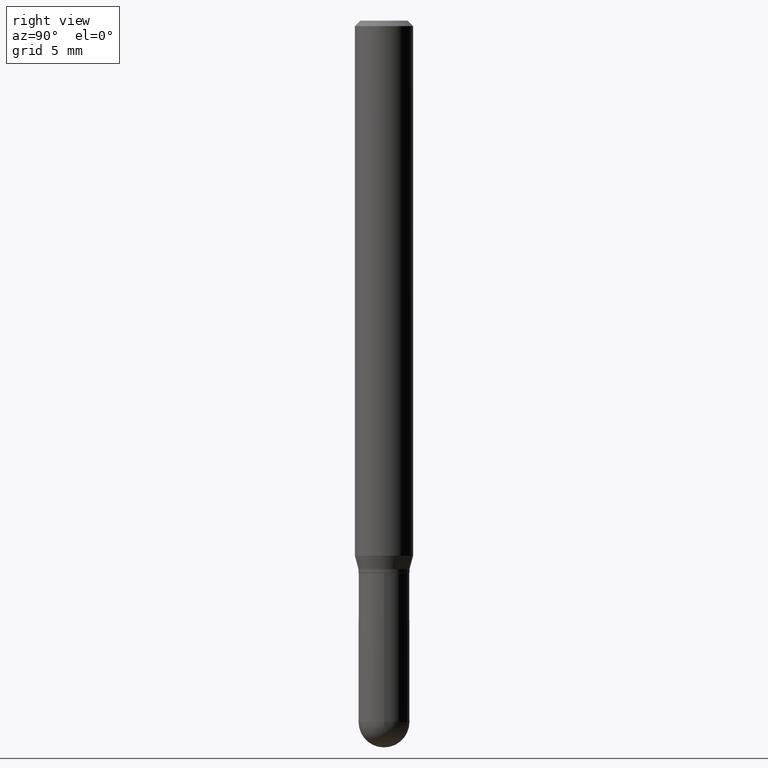
[diagram: clean part render]
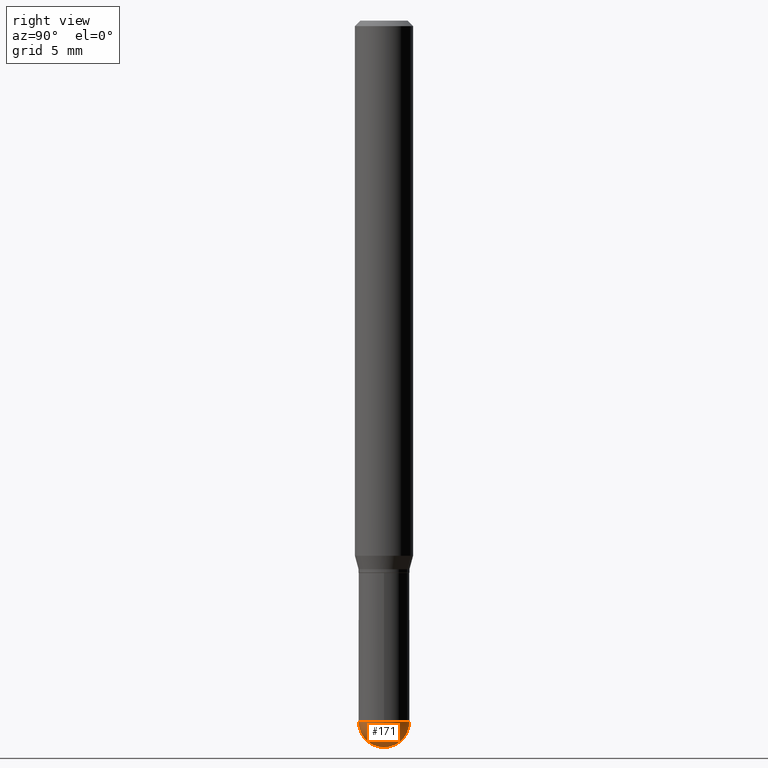
[diagram: same view with one face highlighted and labeled with its STEP entity id]
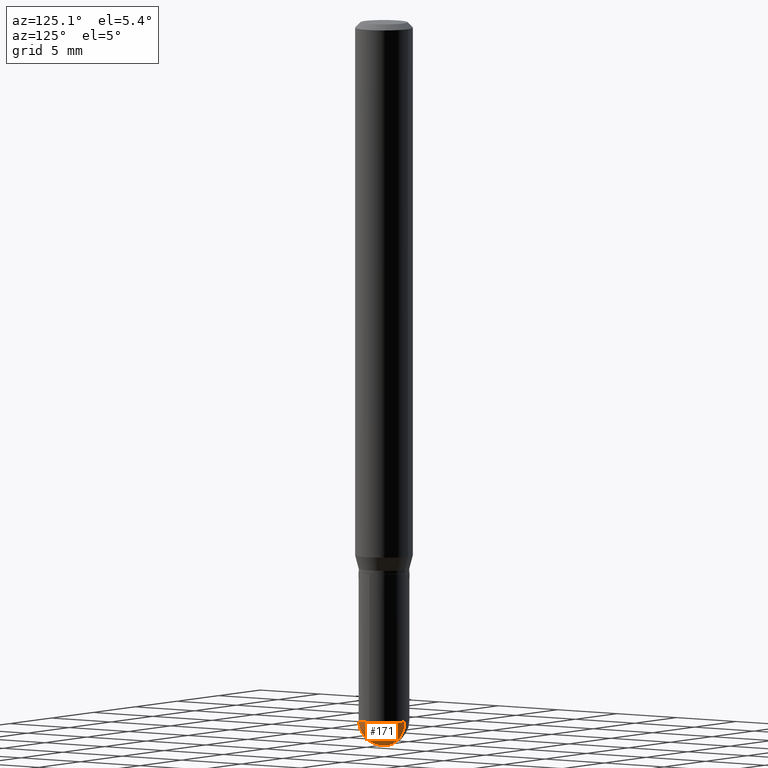
[diagram: same view with one face highlighted and labeled with its STEP entity id]
A machine part, right view. The second image highlights one B-rep face of the part: STEP entity #171.
A second angle (auxiliary view) of the same face is appended — the face is thin or edge-on in the first view.
In plain terms, the highlighted spherical surface has radius 1.7501 mm.
Its self-contained STEP definition (entity closure, byte-faithful):
#8 = DIRECTION ( 'NONE',  ( 1.000000000000000000, -6.982962677686273021E-15, 0.000000000000000000 ) ) ;
#19 = AXIS2_PLACEMENT_3D ( 'NONE', #124, #484, #404 ) ;
#29 = CARTESIAN_POINT ( 'NONE',  ( 4.679918503997674770E-29, -6.583003452920844326E-15, -1.899600000000000177 ) ) ;
#36 = DIRECTION ( 'NONE',  ( -2.445468806185136597E-29, 3.491481338843145583E-15, 1.000000000000000000 ) ) ;
#38 = ORIENTED_EDGE ( 'NONE', *, *, #239, .F. ) ;
#43 = CIRCLE ( 'NONE', #19, 0.06890000000000007230 ) ;
#51 = AXIS2_PLACEMENT_3D ( 'NONE', #316, #36, #8 ) ;
#90 = VERTEX_POINT ( 'NONE', #295 ) ;
#108 = DIRECTION ( 'NONE',  ( 1.000000000000000000, -6.982962677686265922E-15, 4.883557194083112340E-29 ) ) ;
#124 = CARTESIAN_POINT ( 'NONE',  ( 4.645412544229285965E-29, -6.632417951266439838E-15, -1.899600000000000177 ) ) ;
#171 = ADVANCED_FACE ( 'NONE', ( #463 ), #421, .T. ) ;
#200 = AXIS2_PLACEMENT_3D ( 'NONE', #268, #310, #273 ) ;
#201 = EDGE_LOOP ( 'NONE', ( #358, #326, #38, #208 ) ) ;
#208 = ORIENTED_EDGE ( 'NONE', *, *, #212, .F. ) ;
#209 = AXIS2_PLACEMENT_3D ( 'NONE', #346, #436, #269 ) ;
#212 = EDGE_CURVE ( 'NONE', #496, #502, #282, .T. ) ;
#239 = EDGE_CURVE ( 'NONE', #502, #90, #43, .T. ) ;
#259 = CARTESIAN_POINT ( 'NONE',  ( 4.851357352610053575E-29, -6.819347608944073688E-15, -1.968500000000000139 ) ) ;
#266 = DIRECTION ( 'NONE',  ( 6.982962677686265922E-15, 1.000000000000000000, 0.000000000000000000 ) ) ;
#268 = CARTESIAN_POINT ( 'NONE',  ( 4.679918503997674770E-29, -6.583003452920844326E-15, -1.899600000000000177 ) ) ;
#269 = DIRECTION ( 'NONE',  ( 6.982962677686265922E-15, 1.000000000000000000, -3.964946289788482474E-15 ) ) ;
#273 = DIRECTION ( 'NONE',  ( -7.105427357601001859E-15, -1.000000000000000000, 0.000000000000000000 ) ) ;
#274 = CIRCLE ( 'NONE', #426, 0.06889999999999996128 ) ;
#282 = CIRCLE ( 'NONE', #51, 0.06890000000000007230 ) ;
#295 = CARTESIAN_POINT ( 'NONE',  ( 4.811261284926304785E-16, 0.06889999999999341096, -1.899600000000000399 ) ) ;
#310 = DIRECTION ( 'NONE',  ( -1.000000000000000000, 7.105427357601001070E-15, -4.926315508542082329E-29 ) ) ;
#316 = CARTESIAN_POINT ( 'NONE',  ( 4.645412544229285965E-29, -6.632417951266439838E-15, -1.899600000000000177 ) ) ;
#326 = ORIENTED_EDGE ( 'NONE', *, *, #363, .T. ) ;
#344 = CARTESIAN_POINT ( 'NONE',  ( -4.895639449386624073E-16, -0.06890000000000662261, -1.899599999999999955 ) ) ;
#346 = CARTESIAN_POINT ( 'NONE',  ( 4.679918503997674770E-29, -6.583003452920844326E-15, -1.899600000000000177 ) ) ;
#355 = VERTEX_POINT ( 'NONE', #259 ) ;
#358 = ORIENTED_EDGE ( 'NONE', *, *, #381, .F. ) ;
#363 = EDGE_CURVE ( 'NONE', #355, #90, #274, .T. ) ;
#381 = EDGE_CURVE ( 'NONE', #355, #496, #433, .T. ) ;
#404 = DIRECTION ( 'NONE',  ( 1.000000000000000000, -6.982962677686273021E-15, 0.000000000000000000 ) ) ;
#421 = SPHERICAL_SURFACE ( 'NONE', #209, 0.06889999999999996128 ) ;
#426 = AXIS2_PLACEMENT_3D ( 'NONE', #29, #108, #266 ) ;
#431 = CARTESIAN_POINT ( 'NONE',  ( 0.06890000000000008618, -6.409137719647418882E-15, -1.899600000000000177 ) ) ;
#433 = CIRCLE ( 'NONE', #200, 0.06889999999999996128 ) ;
#436 = DIRECTION ( 'NONE',  ( -1.000000000000000000, 6.982962677686265922E-15, -4.883557194083112901E-29 ) ) ;
#463 = FACE_OUTER_BOUND ( 'NONE', #201, .T. ) ;
#484 = DIRECTION ( 'NONE',  ( -2.445468806185136597E-29, 3.491481338843145583E-15, 1.000000000000000000 ) ) ;
#496 = VERTEX_POINT ( 'NONE', #344 ) ;
#502 = VERTEX_POINT ( 'NONE', #431 ) ;